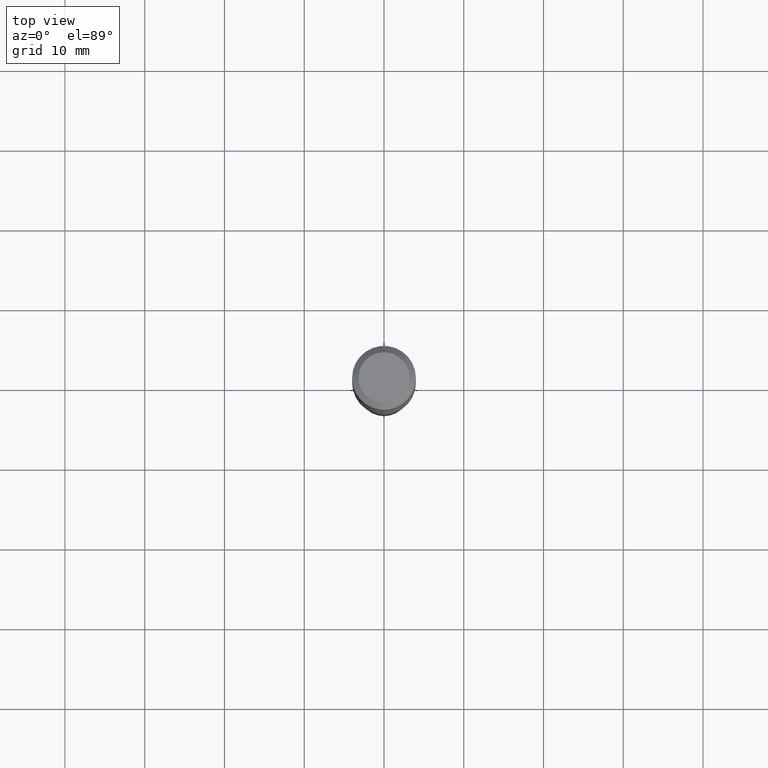
[diagram: clean part render]
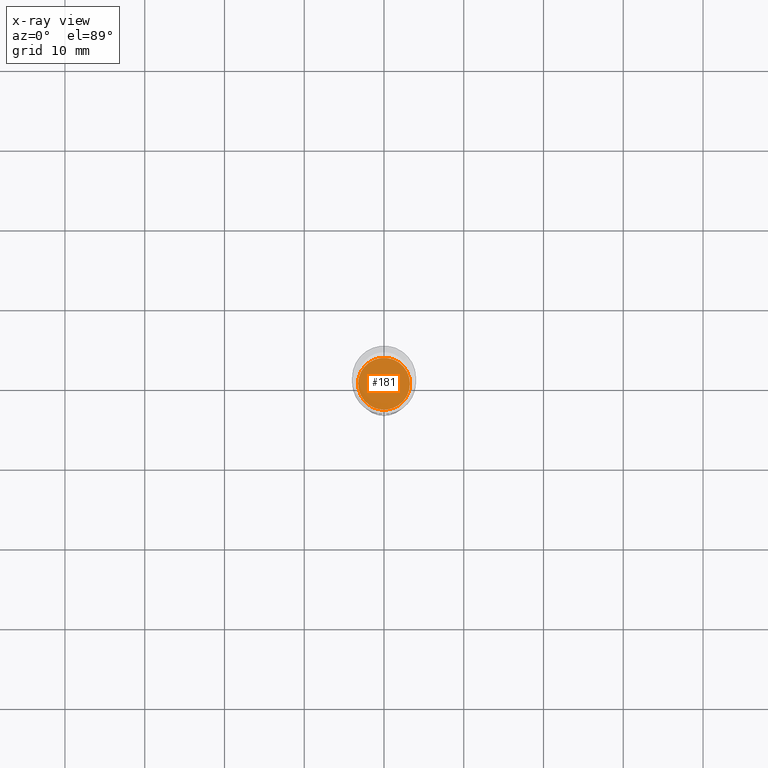
[diagram: x-ray — body ghosted, one internal face saturated and labeled with its STEP entity id]
A machine part, top view, then the same camera in x-ray: the body is ghosted and one INTERNAL B-rep face — a face not visible from any outside direction — is saturated and labeled: STEP entity #181.
In plain terms, the highlighted planar face has unit normal (-0, 0, 1).
Its self-contained STEP definition (entity closure, byte-faithful):
#3 = AXIS2_PLACEMENT_3D ( 'NONE', #297, #151, #337 ) ;
#21 = CIRCLE ( 'NONE', #471, 0.1280000000000000027 ) ;
#43 = EDGE_CURVE ( 'NONE', #316, #219, #21, .T. ) ;
#104 = FACE_OUTER_BOUND ( 'NONE', #194, .T. ) ;
#105 = AXIS2_PLACEMENT_3D ( 'NONE', #305, #376, #411 ) ;
#151 = DIRECTION ( 'NONE',  ( -2.445468806185136597E-29, 3.491481338843145583E-15, 1.000000000000000000 ) ) ;
#156 = EDGE_CURVE ( 'NONE', #219, #316, #159, .T. ) ;
#159 = CIRCLE ( 'NONE', #3, 0.1280000000000000027 ) ;
#162 = CARTESIAN_POINT ( 'NONE',  ( 0.1280000000000000027, -7.014386009735874285E-15, -1.752999999999999670 ) ) ;
#181 = ADVANCED_FACE ( 'NONE', ( #104 ), #450, .F. ) ;
#194 = EDGE_LOOP ( 'NONE', ( #446, #324 ) ) ;
#219 = VERTEX_POINT ( 'NONE', #233 ) ;
#233 = CARTESIAN_POINT ( 'NONE',  ( -0.1280000000000000027, -5.208422858044994235E-15, -1.752999999999999670 ) ) ;
#253 = DIRECTION ( 'NONE',  ( 1.000000000000000000, -6.982962677686263555E-15, 0.000000000000000000 ) ) ;
#297 = CARTESIAN_POINT ( 'NONE',  ( 4.286906817242543611E-29, -6.120566786992032115E-15, -1.752999999999999670 ) ) ;
#305 = CARTESIAN_POINT ( 'NONE',  ( 6.899478394919458068E-29, -2.379215589419022521E-15, -1.752999999999999670 ) ) ;
#316 = VERTEX_POINT ( 'NONE', #162 ) ;
#324 = ORIENTED_EDGE ( 'NONE', *, *, #156, .F. ) ;
#337 = DIRECTION ( 'NONE',  ( 1.000000000000000000, -6.982962677686263555E-15, 0.000000000000000000 ) ) ;
#376 = DIRECTION ( 'NONE',  ( -2.438088387897960049E-29, 3.491481338843145188E-15, 1.000000000000000000 ) ) ;
#411 = DIRECTION ( 'NONE',  ( 1.000000000000000000, -6.982962677686265922E-15, 4.876176775795935793E-29 ) ) ;
#446 = ORIENTED_EDGE ( 'NONE', *, *, #43, .F. ) ;
#450 = PLANE ( 'NONE',  #105 ) ;
#467 = DIRECTION ( 'NONE',  ( -2.445468806185136597E-29, 3.491481338843145583E-15, 1.000000000000000000 ) ) ;
#471 = AXIS2_PLACEMENT_3D ( 'NONE', #474, #467, #253 ) ;
#474 = CARTESIAN_POINT ( 'NONE',  ( 4.286906817242543611E-29, -6.120566786992032115E-15, -1.752999999999999670 ) ) ;